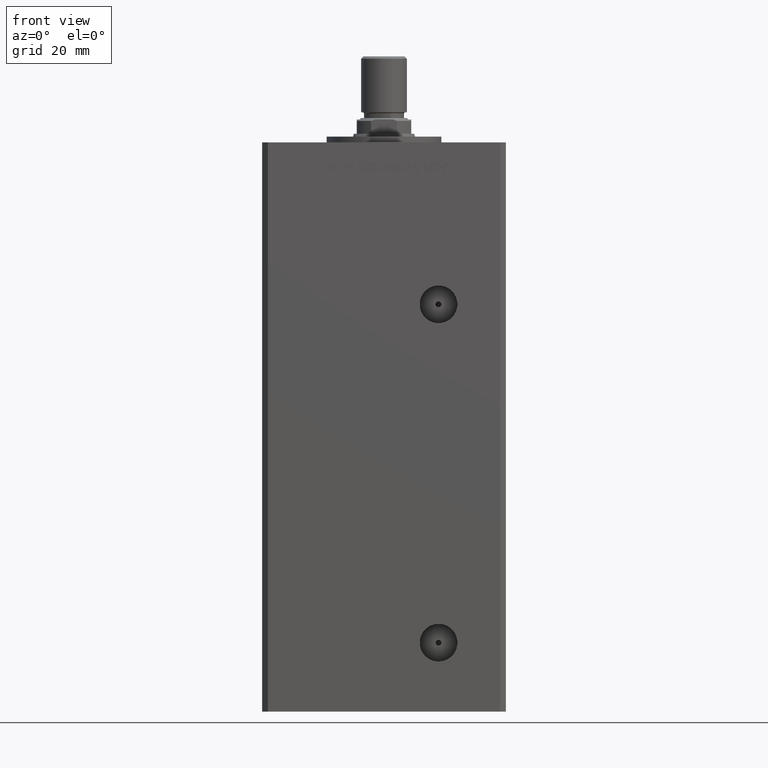
[diagram: clean part render]
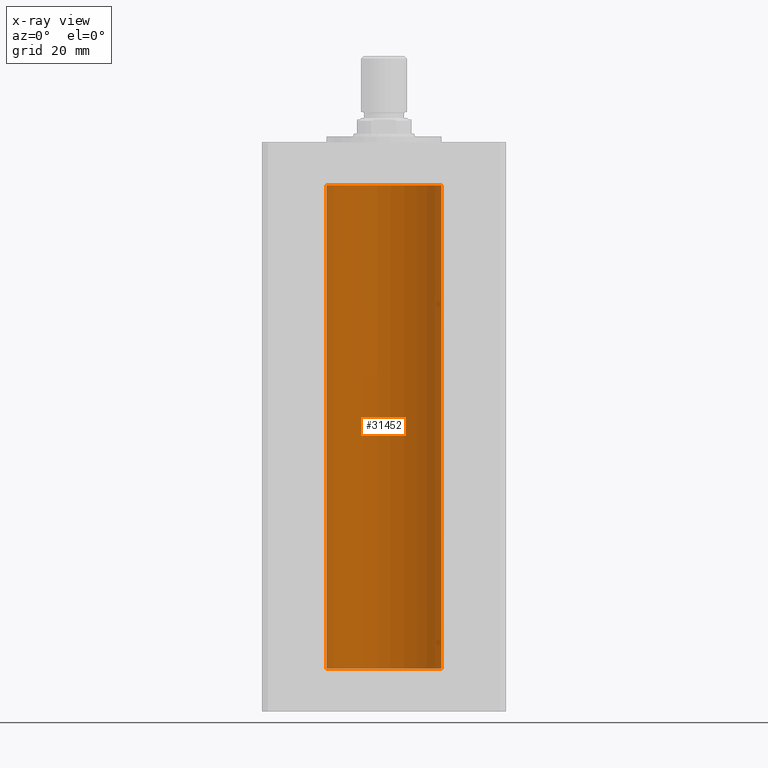
[diagram: x-ray — body ghosted, one internal face saturated and labeled with its STEP entity id]
A machine part, front view, then the same camera in x-ray: the body is ghosted and one INTERNAL B-rep face — a face not visible from any outside direction — is saturated and labeled: STEP entity #31452.
In plain terms, the highlighted cylindrical surface (partial cylindrical patch) has radius 20 mm, axis along (-0, -0, -1).
Its self-contained STEP definition (entity closure, byte-faithful):
#1417 = EDGE_CURVE ( 'NONE', #22497, #36264, #43881, .T. ) ;
#2159 = FACE_OUTER_BOUND ( 'NONE', #18339, .T. ) ;
#4279 = DIRECTION ( 'NONE',  ( 1.000000000000000000, 0.000000000000000000, 0.000000000000000000 ) ) ;
#4785 = CARTESIAN_POINT ( 'NONE',  ( 0.000000000000000000, 0.000000000000000000, 168.5000000000000000 ) ) ;
#8528 = CARTESIAN_POINT ( 'NONE',  ( 0.000000000000000000, 0.000000000000000000, 0.000000000000000000 ) ) ;
#8847 = CARTESIAN_POINT ( 'NONE',  ( -20.00000000000000000, 0.000000000000000000, 168.5000000000000000 ) ) ;
#12807 = DIRECTION ( 'NONE',  ( -0.000000000000000000, -0.000000000000000000, -1.000000000000000000 ) ) ;
#13311 = DIRECTION ( 'NONE',  ( -0.000000000000000000, 0.000000000000000000, 1.000000000000000000 ) ) ;
#13602 = LINE ( 'NONE', #29785, #50516 ) ;
#16833 = VECTOR ( 'NONE', #37209, 1000.000000000000000 ) ;
#17186 = CARTESIAN_POINT ( 'NONE',  ( 20.00000000000000000, 2.449293598294706513E-15, 0.000000000000000000 ) ) ;
#17753 = CARTESIAN_POINT ( 'NONE',  ( -20.00000000000000000, 0.000000000000000000, 0.000000000000000000 ) ) ;
#18077 = CYLINDRICAL_SURFACE ( 'NONE', #43734, 20.00000000000000000 ) ;
#18339 = EDGE_LOOP ( 'NONE', ( #51861, #30124, #40955, #46830 ) ) ;
#22305 = EDGE_CURVE ( 'NONE', #27817, #47470, #25716, .T. ) ;
#22497 = VERTEX_POINT ( 'NONE', #40797 ) ;
#22568 = DIRECTION ( 'NONE',  ( -0.000000000000000000, -0.000000000000000000, -1.000000000000000000 ) ) ;
#22681 = CARTESIAN_POINT ( 'NONE',  ( -20.00000000000000000, 0.000000000000000000, 168.5000000000000000 ) ) ;
#24656 = DIRECTION ( 'NONE',  ( 1.000000000000000000, 0.000000000000000000, 0.000000000000000000 ) ) ;
#25716 = CIRCLE ( 'NONE', #25788, 20.00000000000000000 ) ;
#25728 = DIRECTION ( 'NONE',  ( -0.000000000000000000, 0.000000000000000000, 1.000000000000000000 ) ) ;
#25788 = AXIS2_PLACEMENT_3D ( 'NONE', #8528, #13311, #4279 ) ;
#27817 = VERTEX_POINT ( 'NONE', #17186 ) ;
#29785 = CARTESIAN_POINT ( 'NONE',  ( 20.00000000000000000, 2.449293598294706513E-15, 168.5000000000000000 ) ) ;
#30124 = ORIENTED_EDGE ( 'NONE', *, *, #1417, .T. ) ;
#31452 = ADVANCED_FACE ( 'NONE', ( #2159 ), #18077, .F. ) ;
#34239 = DIRECTION ( 'NONE',  ( -1.000000000000000000, 0.000000000000000000, 0.000000000000000000 ) ) ;
#36264 = VERTEX_POINT ( 'NONE', #22681 ) ;
#37209 = DIRECTION ( 'NONE',  ( -0.000000000000000000, -0.000000000000000000, -1.000000000000000000 ) ) ;
#39166 = EDGE_CURVE ( 'NONE', #22497, #27817, #13602, .T. ) ;
#40797 = CARTESIAN_POINT ( 'NONE',  ( 20.00000000000000000, 2.449293598294706513E-15, 168.5000000000000000 ) ) ;
#40955 = ORIENTED_EDGE ( 'NONE', *, *, #46266, .T. ) ;
#41937 = CARTESIAN_POINT ( 'NONE',  ( 0.000000000000000000, 0.000000000000000000, 168.5000000000000000 ) ) ;
#43734 = AXIS2_PLACEMENT_3D ( 'NONE', #41937, #22568, #34239 ) ;
#43881 = CIRCLE ( 'NONE', #50677, 20.00000000000000000 ) ;
#46266 = EDGE_CURVE ( 'NONE', #36264, #47470, #49934, .T. ) ;
#46830 = ORIENTED_EDGE ( 'NONE', *, *, #22305, .F. ) ;
#47470 = VERTEX_POINT ( 'NONE', #17753 ) ;
#49934 = LINE ( 'NONE', #8847, #16833 ) ;
#50516 = VECTOR ( 'NONE', #12807, 1000.000000000000000 ) ;
#50677 = AXIS2_PLACEMENT_3D ( 'NONE', #4785, #25728, #24656 ) ;
#51861 = ORIENTED_EDGE ( 'NONE', *, *, #39166, .F. ) ;